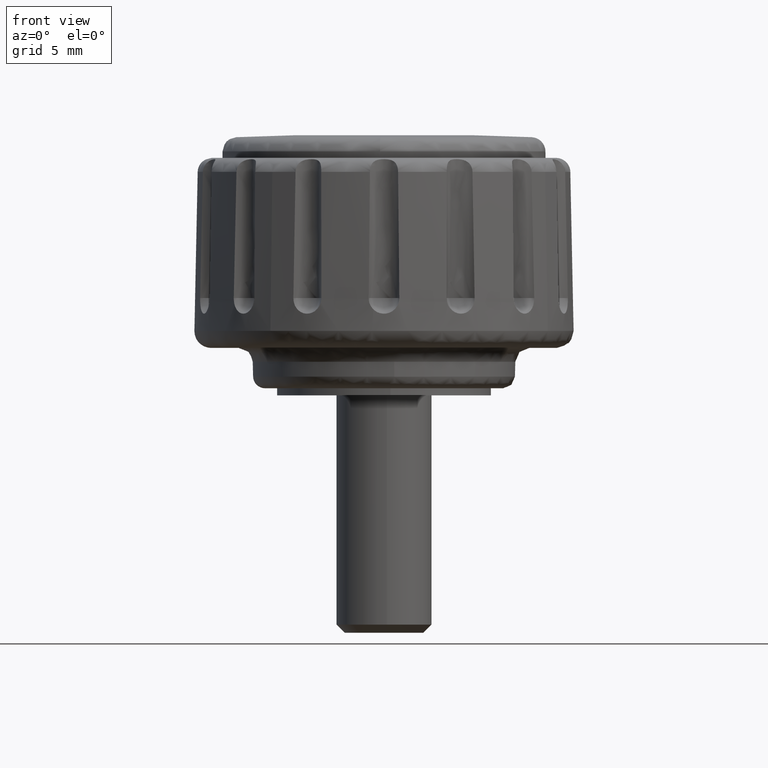
[diagram: clean part render]
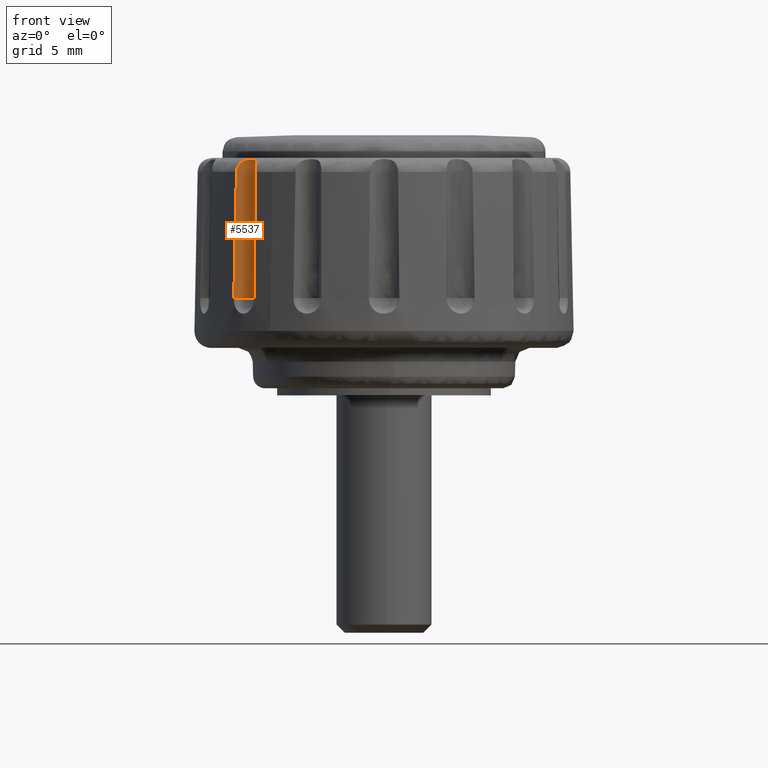
[diagram: same view with one face highlighted and labeled with its STEP entity id]
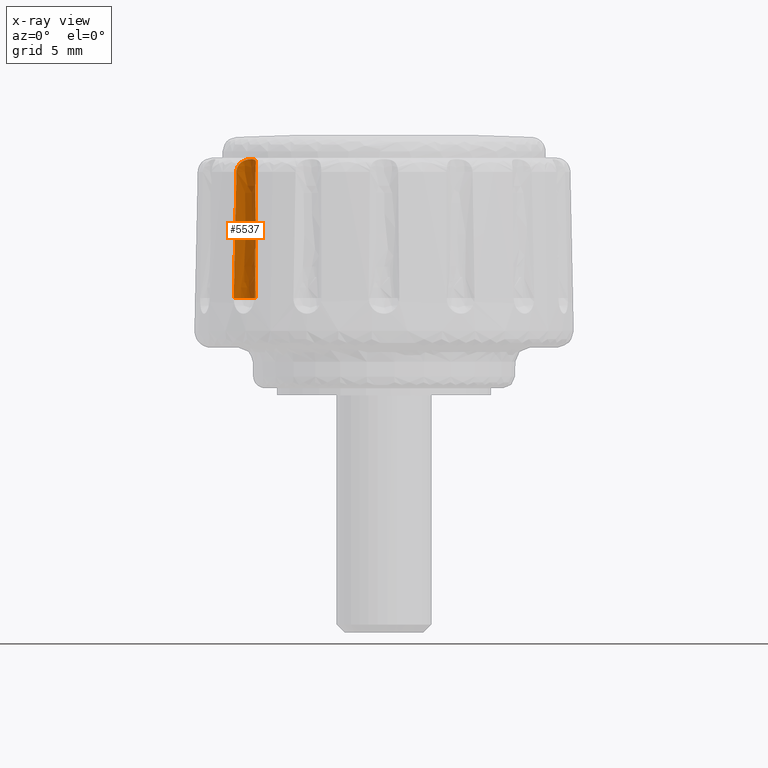
[diagram: x-ray of the same camera — body ghosted, the highlighted face saturated]
A machine part, front view. The second image highlights one B-rep face of the part: STEP entity #5537.
The next image is the same camera in x-ray: the body ghosted, the highlighted face saturated — about 0% of this face is hidden behind the body in this view.
In plain terms, the highlighted face is a freeform B-spline surface patch.
Its self-contained STEP definition (entity closure, byte-faithful):
#1665=CARTESIAN_POINT('',(-5.420122522255470,-5.677075191486190,9.412215999999800));
#1666=VERTEX_POINT('',#1665);
#1680=CARTESIAN_POINT('',(-5.461426303744900,-5.787072312373681,4.099997999999935));
#1681=VERTEX_POINT('',#1680);
#1682=CARTESIAN_POINT('',(-5.420122522255469,-5.677075191486196,9.412215999999800));
#1683=CARTESIAN_POINT('',(-5.431213620575300,-5.716357083927331,7.641511708373069));
#1684=CARTESIAN_POINT('',(-5.445165087540626,-5.752819106737463,5.870766568932547));
#1685=CARTESIAN_POINT('',(-5.461426303744891,-5.787072312373696,4.099997999999935));
#1686=QUASI_UNIFORM_CURVE('',3,(#1682,#1683,#1684,#1685),.UNSPECIFIED.,.F.,.U.);
#1687=EDGE_CURVE('',#1666,#1681,#1686,.T.);
#1689=CARTESIAN_POINT('',(-6.326244623515130,-4.826594263383310,4.099997999999900));
#1690=VERTEX_POINT('',#1689);
#1738=CARTESIAN_POINT('',(-6.212530992362900,-4.797014291706230,9.412215961043639));
#1739=VERTEX_POINT('',#1738);
#1740=CARTESIAN_POINT('',(-6.326244623515130,-4.826594263383310,4.099997999999900));
#1741=CARTESIAN_POINT('',(-6.290478742942761,-4.814002466320418,5.870766683381367));
#1742=CARTESIAN_POINT('',(-6.252757589092196,-4.803938652226182,7.641511502886163));
#1743=CARTESIAN_POINT('',(-6.212530992362900,-4.797014291706230,9.412215961043639));
#1744=QUASI_UNIFORM_CURVE('',3,(#1740,#1741,#1742,#1743),.UNSPECIFIED.,.F.,.U.);
#1745=EDGE_CURVE('',#1690,#1739,#1744,.T.);
#4269=CARTESIAN_POINT('',(-5.420122522255470,-5.677075191486190,9.412215999999800));
#4270=CARTESIAN_POINT('',(-5.419861283659399,-5.676149942068577,9.453916721253476));
#4271=CARTESIAN_POINT('',(-5.418244122714794,-5.670594536371374,9.494704833202196));
#4272=CARTESIAN_POINT('',(-5.414325995053041,-5.655281211870507,9.554537304504338));
#4273=CARTESIAN_POINT('',(-5.412765037800286,-5.648950142640913,9.574370130042945));
#4274=CARTESIAN_POINT('',(-5.409370881175939,-5.633959952735324,9.612978597844538));
#4275=CARTESIAN_POINT('',(-5.405732607712793,-5.616763986580156,9.650304877469463));
#4276=CARTESIAN_POINT('',(-5.402103795824773,-5.595138481990757,9.685104555301905));
#4277=CARTESIAN_POINT('',(-5.398780054909302,-5.571208918837228,9.718618972083313));
#4278=CARTESIAN_POINT('',(-5.397263724637477,-5.557978352427946,9.734840476893186));
#4279=CARTESIAN_POINT('',(-5.393812855499450,-5.515768314890854,9.780307952086478));
#4280=CARTESIAN_POINT('',(-5.392930888598683,-5.484196591229202,9.806634205302336));
#4281=CARTESIAN_POINT('',(-5.395707536824214,-5.432207746928862,9.840784181276851));
#4282=CARTESIAN_POINT('',(-5.397331661781968,-5.414131657890680,9.851233063807094));
#4283=CARTESIAN_POINT('',(-5.402120020724387,-5.377610298184528,9.869956063568884));
#4284=CARTESIAN_POINT('',(-5.405287885026418,-5.359040407762018,9.878316308489112));
#4285=CARTESIAN_POINT('',(-5.417371423154518,-5.302634853472124,9.900804938109520));
#4286=CARTESIAN_POINT('',(-5.429020933969873,-5.263901092919732,9.912352961847642));
#4287=CARTESIAN_POINT('',(-5.451532236193169,-5.207733220494119,9.925297023523573));
#4288=CARTESIAN_POINT('',(-5.459888932644733,-5.189222969474688,9.928922032146852));
#4289=CARTESIAN_POINT('',(-5.478361006697669,-5.152697346474847,9.935010304568083));
#4290=CARTESIAN_POINT('',(-5.488535011051680,-5.134595213554912,9.937480643029645));
#4291=CARTESIAN_POINT('',(-5.521238467307428,-5.082032850679941,9.943259063981907));
#4292=CARTESIAN_POINT('',(-5.545960666368620,-5.049154840369781,9.945032285502835));
#4293=CARTESIAN_POINT('',(-5.587425779339820,-5.003106986373599,9.945030959725871));
#4294=CARTESIAN_POINT('',(-5.602064808249565,-4.988231407600655,9.944568639866329));
#4295=CARTESIAN_POINT('',(-5.632424307640159,-4.960015534154527,9.942689594053823));
#4296=CARTESIAN_POINT('',(-5.648104100677787,-4.946696796520680,9.941280670589180));
#4297=CARTESIAN_POINT('',(-5.696571580483775,-4.909032529014461,9.935527252520357));
#4298=CARTESIAN_POINT('',(-5.730784232925958,-4.886963718289373,9.929709340950955));
#4299=CARTESIAN_POINT('',(-5.802763918077446,-4.848932625771771,9.912306373263597));
#4300=CARTESIAN_POINT('',(-5.839401515553391,-4.833610034490952,9.900942589624782));
#4301=CARTESIAN_POINT('',(-5.893843410250506,-4.815759809087979,9.878686167111145));
#4302=CARTESIAN_POINT('',(-5.911939649484042,-4.810649313100785,9.870383158481380));
#4303=CARTESIAN_POINT('',(-5.947861054533365,-4.801998877126844,9.851677396572233));
#4304=CARTESIAN_POINT('',(-5.965742210388092,-4.798462242550993,9.841215007211428));
#4305=CARTESIAN_POINT('',(-6.016977285151308,-4.790236328551432,9.807305138358249));
#4306=CARTESIAN_POINT('',(-6.048513234978652,-4.787758455057619,9.781088387611737));
#4307=CARTESIAN_POINT('',(-6.091066713517704,-4.786730560811837,9.735578581192421));
#4308=CARTESIAN_POINT('',(-6.104401626708543,-4.786844612151924,9.719397350403460));
#4309=CARTESIAN_POINT('',(-6.128631262222806,-4.787631814422523,9.685906184650195));
#4310=CARTESIAN_POINT('',(-6.139638629881017,-4.788301617353759,9.668483377353567));
#4311=CARTESIAN_POINT('',(-6.169384757255538,-4.790679009210548,9.614196895074393));
#4312=CARTESIAN_POINT('',(-6.184849446642097,-4.792736937141521,9.575021713290330));
#4313=CARTESIAN_POINT('',(-6.205788951166664,-4.795806626059988,9.495266307989162));
#4314=CARTESIAN_POINT('',(-6.211582298315293,-4.796850992339362,9.453969800863998));
#4315=CARTESIAN_POINT('',(-6.212530992362900,-4.797014291706230,9.412215961043639));
#4316=B_SPLINE_CURVE_WITH_KNOTS('',3,(#4269,#4270,#4271,#4272,#4273,#4274,#4275,#4276,#4277,#4278,#4279,#4280,#4281,#4282,#4283,#4284,#4285,#4286,#4287,#4288,#4289,#4290,#4291,#4292,#4293,#4294,#4295,#4296,#4297,#4298,#4299,#4300,#4301,#4302,#4303,#4304,#4305,#4306,#4307,#4308,#4309,#4310,#4311,#4312,#4313,#4314,#4315),.UNSPECIFIED.,.F.,.U.,(4,2,2,1,2,2,2,2,2,2,2,2,2,2,2,2,2,2,2,2,2,2,2,4),(0.000000139648876,0.062500000000002,0.093750000000001,0.125000000000001,0.156250000000001,0.187500000000000,0.250000000000001,0.281250000000002,0.312500000000002,0.375000000000002,0.406250000000001,0.437500000000001,0.500000000000000,0.531250000000000,0.562500000000001,0.625000000000000,0.687500000000000,0.718750000000001,0.750000000000001,0.812500000000001,0.843750000000001,0.875000000000001,0.937500000000000,1.0),.UNSPECIFIED.);
#4317=EDGE_CURVE('',#1666,#1739,#4316,.T.);
#5151=CARTESIAN_POINT('',(-5.461426303744892,-5.787072312373685,4.099997999999940));
#5152=CARTESIAN_POINT('',(-5.261233133108837,-5.365378279490229,4.099997999999940));
#5153=CARTESIAN_POINT('',(-5.573583961645977,-5.018477540299617,4.099997999999940));
#5154=CARTESIAN_POINT('',(-5.885934790183118,-4.671576801109006,4.099997999999940));
#5155=CARTESIAN_POINT('',(-6.326244623515130,-4.826594263383310,4.099997999999900));
#5163=(BOUNDED_CURVE()B_SPLINE_CURVE(2,(#5151,#5152,#5153,#5154,#5155),.UNSPECIFIED.,.F.,.U.)B_SPLINE_CURVE_WITH_KNOTS((3,2,3),(0.0,0.500000000000000,1.0),.UNSPECIFIED.)CURVE()GEOMETRIC_REPRESENTATION_ITEM()RATIONAL_B_SPLINE_CURVE((1.0,0.831976603905543,1.0,0.831976603905543,1.0))REPRESENTATION_ITEM(''));
#5164=EDGE_CURVE('',#1681,#1690,#5163,.T.);
#5513=CARTESIAN_POINT('',(-5.471567524834739,-5.807563509665274,10.091157237031100));
#5514=CARTESIAN_POINT('',(-5.471567524834739,-5.807563509665274,3.950219019074120));
#5515=CARTESIAN_POINT('',(-5.247014787022907,-5.371881905442185,10.091157237031096));
#5516=CARTESIAN_POINT('',(-5.247014787022907,-5.371881905442185,3.950219019074120));
#5517=CARTESIAN_POINT('',(-5.579620015952935,-5.011859470022396,10.091157237031100));
#5518=CARTESIAN_POINT('',(-5.579620015952935,-5.011859470022396,3.950219019074120));
#5519=CARTESIAN_POINT('',(-5.912225244882963,-4.651837034602607,10.091157237031096));
#5520=CARTESIAN_POINT('',(-5.912225244882963,-4.651837034602607,3.950219019074120));
#5521=CARTESIAN_POINT('',(-6.364293358833827,-4.841248788900228,10.091157237031100));
#5522=CARTESIAN_POINT('',(-6.364293358833827,-4.841248788900228,3.950219019074120));
#5530=(BOUNDED_SURFACE()B_SPLINE_SURFACE(1,2,((#5513,#5515,#5517,#5519,#5521),(#5514,#5516,#5518,#5520,#5522)),.UNSPECIFIED.,.F.,.F.,.U.)B_SPLINE_SURFACE_WITH_KNOTS((2,2),(3,2,3),(0.0,6.140938217956976),(0.0,1.0,2.0),.UNSPECIFIED.)GEOMETRIC_REPRESENTATION_ITEM()RATIONAL_B_SPLINE_SURFACE(((1.0,0.819152044288992,1.0,0.819152044288992,1.0),(1.0,0.819152044288992,1.0,0.819152044288992,1.0)))REPRESENTATION_ITEM('')SURFACE());
#5531=ORIENTED_EDGE('',*,*,#4317,.T.);
#5532=ORIENTED_EDGE('',*,*,#1745,.F.);
#5533=ORIENTED_EDGE('',*,*,#5164,.F.);
#5534=ORIENTED_EDGE('',*,*,#1687,.F.);
#5535=EDGE_LOOP('',(#5531,#5532,#5533,#5534));
#5536=FACE_OUTER_BOUND('',#5535,.T.);
#5537=ADVANCED_FACE('',(#5536),#5530,.F.);